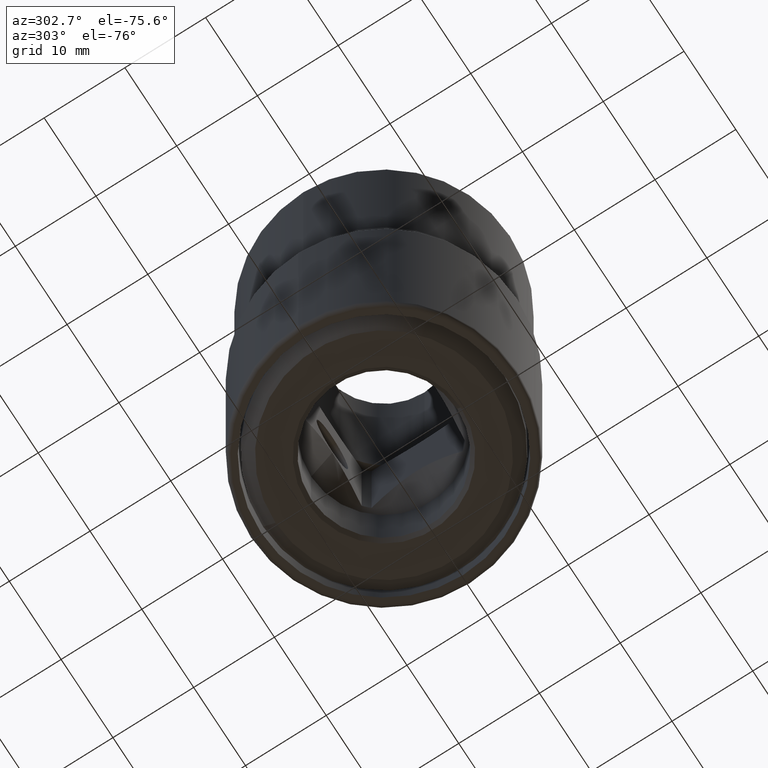
[diagram: clean part render]
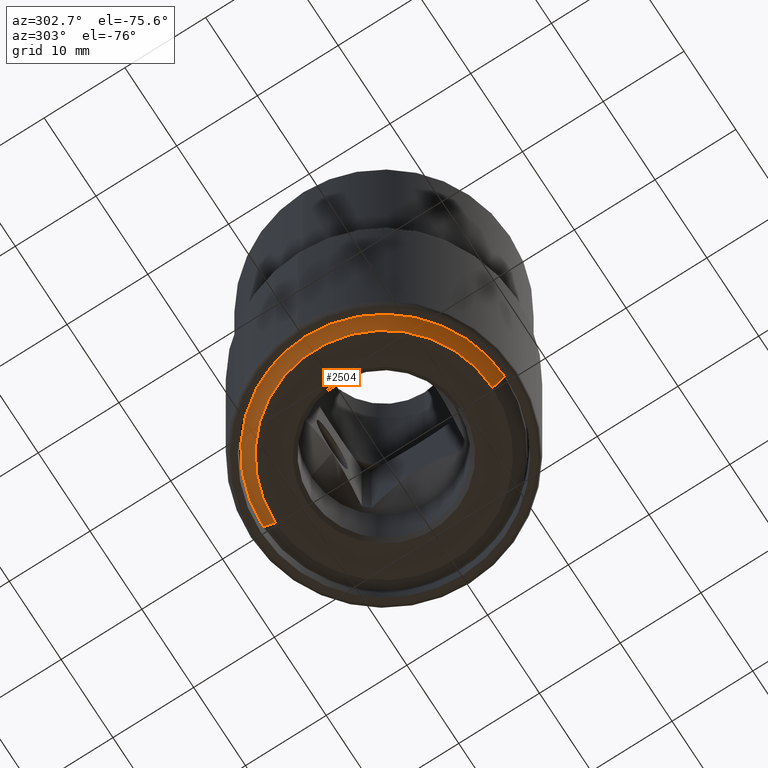
[diagram: same view with one face highlighted and labeled with its STEP entity id]
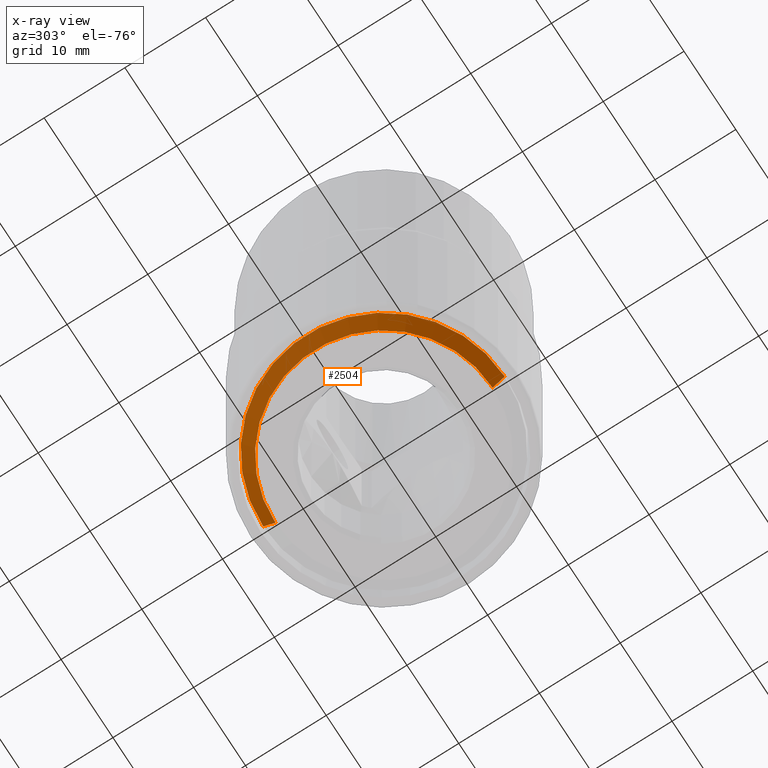
[diagram: x-ray of the same camera — body ghosted, the highlighted face saturated]
A machine part, auxiliary view. The second image highlights one B-rep face of the part: STEP entity #2504.
The next image is the same camera in x-ray: the body ghosted, the highlighted face saturated — about 0% of this face is hidden behind the body in this view.
In plain terms, the highlighted conical surface has half-angle 45 deg.
Its self-contained STEP definition (entity closure, byte-faithful):
#211=CARTESIAN_POINT('',(0.E0,0.E0,-8.5E0));
#212=DIRECTION('',(0.E0,0.E0,1.E0));
#213=DIRECTION('',(0.E0,1.E0,0.E0));
#214=AXIS2_PLACEMENT_3D('',#211,#212,#213);
#1083=CARTESIAN_POINT('',(0.E0,0.E0,-1.E1));
#1084=DIRECTION('',(0.E0,0.E0,1.E0));
#1085=DIRECTION('',(0.E0,1.E0,0.E0));
#1086=AXIS2_PLACEMENT_3D('',#1083,#1084,#1085);
#1110=DIRECTION('',(-1.037009343369E-9,7.071067811865E-1,-7.071067811865E-1));
#1111=VECTOR('',#1110,2.121320343573E0);
#1112=CARTESIAN_POINT('',(-1.102371862443E-8,-1.494999999995E1,
-8.500000000049E0));
#1113=LINE('',#1112,#1111);
#1114=DIRECTION('',(1.037008692820E-9,-7.071067811865E-1,-7.071067811865E-1));
#1115=VECTOR('',#1114,2.121320343573E0);
#1116=CARTESIAN_POINT('',(1.102371889521E-8,1.494999999995E1,
-8.500000000049E0));
#1117=LINE('',#1116,#1115);
#1383=CARTESIAN_POINT('',(0.E0,-1.495E1,-8.5E0));
#1384=CARTESIAN_POINT('',(0.E0,1.495E1,-8.5E0));
#1385=VERTEX_POINT('',#1383);
#1386=VERTEX_POINT('',#1384);
#1387=CARTESIAN_POINT('',(0.E0,-1.345E1,-1.E1));
#1388=CARTESIAN_POINT('',(0.E0,1.345E1,-1.E1));
#1389=VERTEX_POINT('',#1387);
#1390=VERTEX_POINT('',#1388);
#2493=CARTESIAN_POINT('',(0.E0,0.E0,-9.250000000088E0));
#2494=DIRECTION('',(0.E0,0.E0,1.E0));
#2495=DIRECTION('',(0.E0,-1.E0,0.E0));
#2496=AXIS2_PLACEMENT_3D('',#2493,#2494,#2495);
#2497=CONICAL_SURFACE('',#2496,1.419999999991E1,4.5E1);
#2498=ORIENTED_EDGE('',*,*,#1594,.T.);
#2499=ORIENTED_EDGE('',*,*,#2488,.T.);
#2500=ORIENTED_EDGE('',*,*,#2444,.F.);
#2501=ORIENTED_EDGE('',*,*,#2485,.F.);
#2502=EDGE_LOOP('',(#2498,#2499,#2500,#2501));
#2503=FACE_OUTER_BOUND('',#2502,.F.);
#2504=ADVANCED_FACE('',(#2503),#2497,.T.);
#215=CIRCLE('',#214,1.495E1);
#1087=CIRCLE('',#1086,1.345E1);
#1594=EDGE_CURVE('',#1386,#1385,#215,.T.);
#2444=EDGE_CURVE('',#1390,#1389,#1087,.T.);
#2485=EDGE_CURVE('',#1386,#1390,#1117,.T.);
#2488=EDGE_CURVE('',#1385,#1389,#1113,.T.);